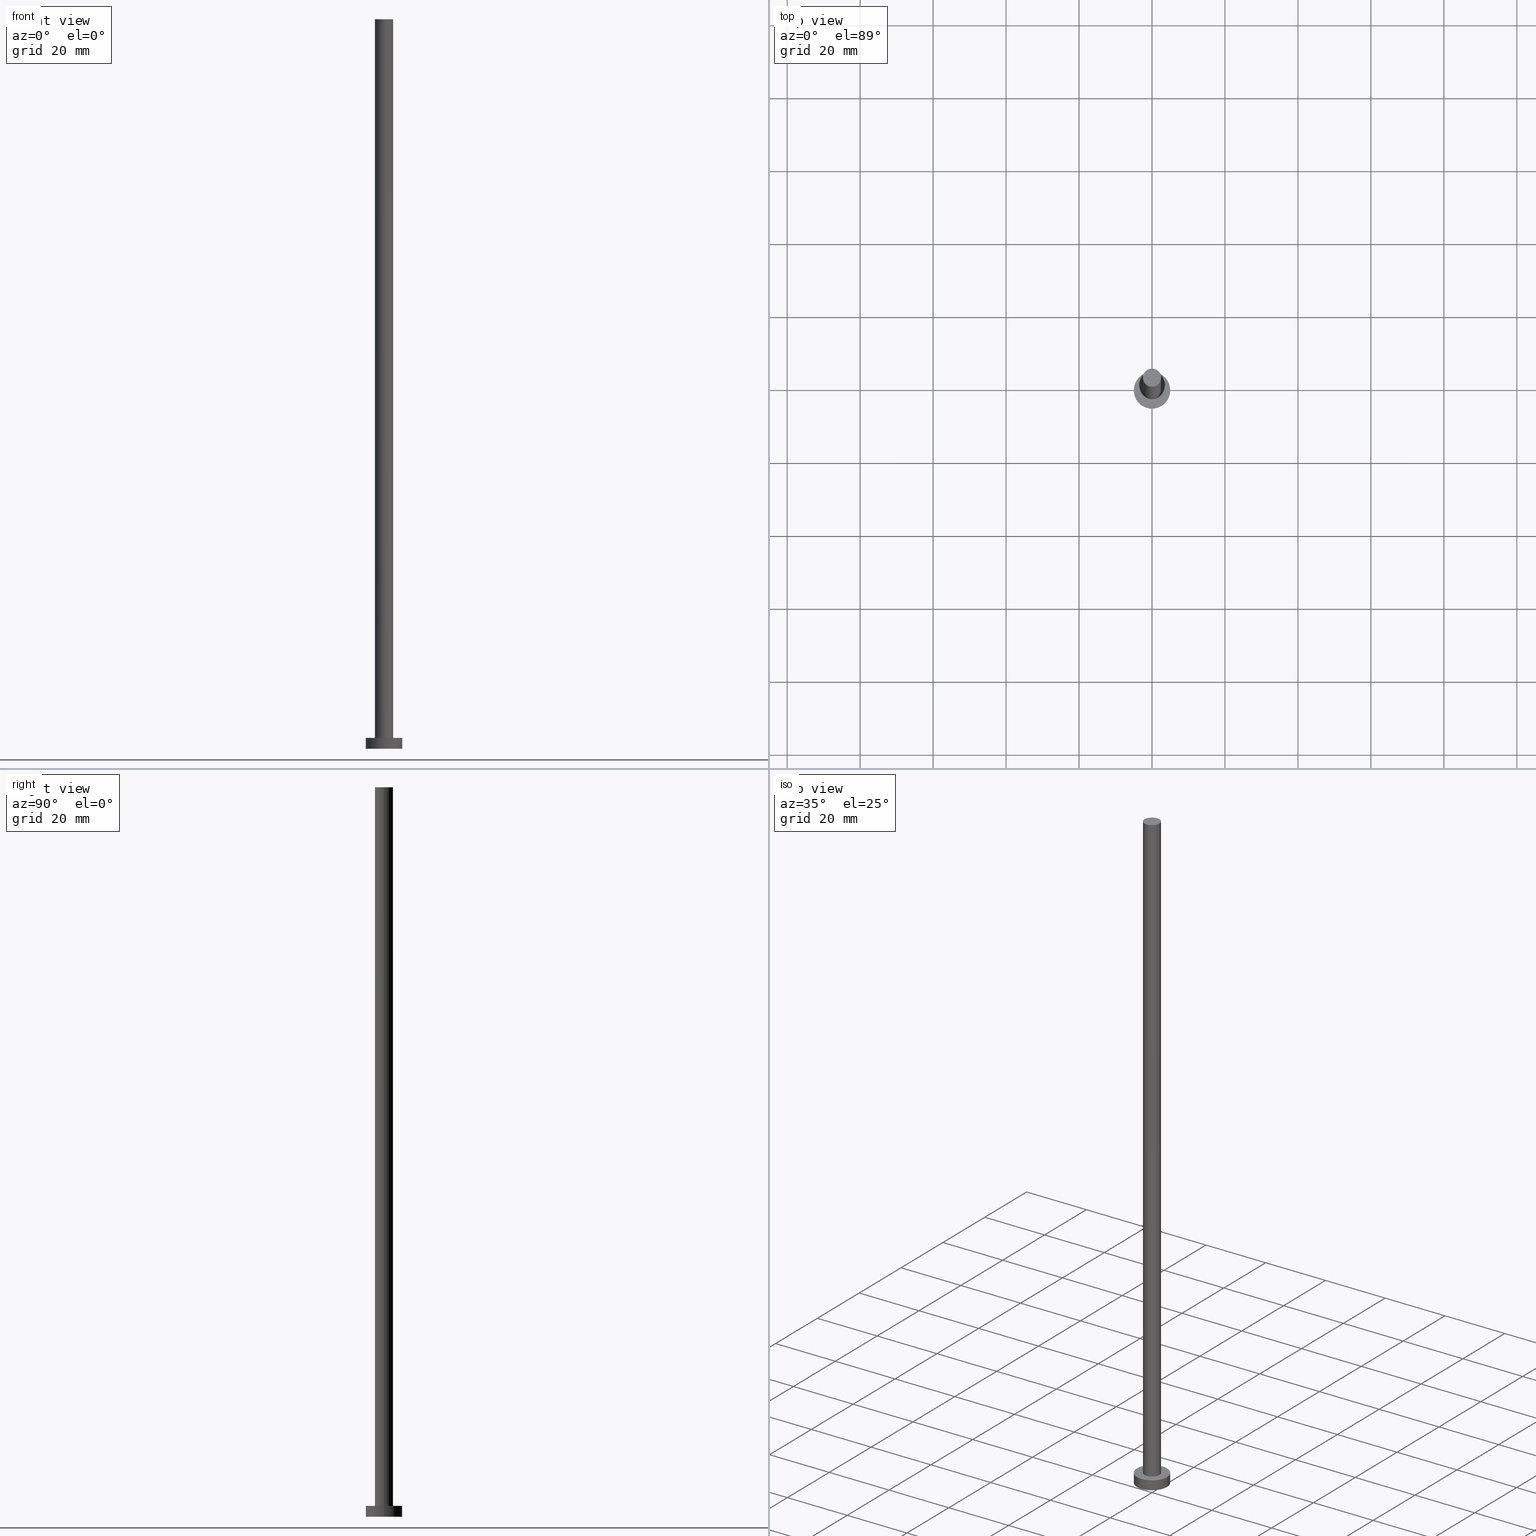
[diagram: canonical four-view strip — front | top / right | iso, engineering-drawing reading convention]
A machine part, canonical four-view strip (front | top / right | iso — engineering-drawing reading convention). The complete STEP part file that produces these views, byte-faithful:
ISO-10303-21;
HEADER;
FILE_DESCRIPTION (( 'STEP AP203' ),
    '1' );
FILE_NAME ('2fd8.STEP',
    '2023-02-12T12:30:58',
    ( '' ),
    ( '' ),
    'SwSTEP 2.0',
    'SolidWorks 2019',
    '' );
FILE_SCHEMA (( 'CONFIG_CONTROL_DESIGN' ));
ENDSEC;

DATA;
#1 = EDGE_LOOP ( 'NONE', ( #192, #132 ) ) ;
#2 = FACE_OUTER_BOUND ( 'NONE', #228, .T. ) ;
#3 = VERTEX_POINT ( 'NONE', #71 ) ;
#4 = PERSON_AND_ORGANIZATION_ROLE ( 'design_owner' ) ;
#5 = AXIS2_PLACEMENT_3D ( 'NONE', #241, #68, #124 ) ;
#6 = DIRECTION ( 'NONE',  ( -0.000000000000000000, -0.000000000000000000, -1.000000000000000000 ) ) ;
#7 = DIRECTION ( 'NONE',  ( 1.000000000000000000, 0.000000000000000000, 0.000000000000000000 ) ) ;
#8 = FACE_OUTER_BOUND ( 'NONE', #1, .T. ) ;
#9 = DIRECTION ( 'NONE',  ( 0.000000000000000000, 0.000000000000000000, 1.000000000000000000 ) ) ;
#10 = AXIS2_PLACEMENT_3D ( 'NONE', #13, #156, #245 ) ;
#11 = EDGE_CURVE ( 'NONE', #87, #165, #249, .T. ) ;
#12 = DIRECTION ( 'NONE',  ( 0.000000000000000000, 0.000000000000000000, 1.000000000000000000 ) ) ;
#13 = CARTESIAN_POINT ( 'NONE',  ( 0.000000000000000000, 0.000000000000000000, 200.0000000000000000 ) ) ;
#14 = DIRECTION ( 'NONE',  ( -1.000000000000000000, 0.000000000000000000, 0.000000000000000000 ) ) ;
#15 = CARTESIAN_POINT ( 'NONE',  ( 0.000000000000000000, 0.000000000000000000, 3.000000000000000000 ) ) ;
#16 = AXIS2_PLACEMENT_3D ( 'NONE', #17, #160, #201 ) ;
#17 = CARTESIAN_POINT ( 'NONE',  ( 0.000000000000000000, 0.000000000000000000, 0.000000000000000000 ) ) ;
#18 = PRODUCT_DEFINITION_SHAPE ( 'NONE', 'NONE',  #164 ) ;
#19 = DATE_AND_TIME ( #179, #91 ) ;
#20 = EDGE_CURVE ( 'NONE', #87, #85, #193, .T. ) ;
#21 = PERSON_AND_ORGANIZATION_ROLE ( 'classification_officer' ) ;
#22 = PERSON_AND_ORGANIZATION ( #26, #197 ) ;
#23 = EDGE_LOOP ( 'NONE', ( #214, #86, #41, #185 ) ) ;
#24 = DIRECTION ( 'NONE',  ( -1.000000000000000000, 0.000000000000000000, 0.000000000000000000 ) ) ;
#25 = EDGE_LOOP ( 'NONE', ( #168, #126, #43, #181 ) ) ;
#26 = PERSON ( 'NEUR�EN�', 'NEUR�EN�', 'NEUR�EN�', ('NEUR�EN�'), ('NEUR�EN�'), ('NEUR�EN�') ) ;
#27 = CARTESIAN_POINT ( 'NONE',  ( -2.500000000000000000, 0.000000000000000000, 200.0000000000000000 ) ) ;
#28 = APPLICATION_CONTEXT ( 'configuration controlled 3d designs of mechanical parts and assemblies' ) ;
#29 = DIRECTION ( 'NONE',  ( -0.000000000000000000, -0.000000000000000000, -1.000000000000000000 ) ) ;
#30 = EDGE_CURVE ( 'NONE', #235, #131, #73, .T. ) ;
#31 = EDGE_CURVE ( 'NONE', #131, #3, #218, .T. ) ;
#32 = CARTESIAN_POINT ( 'NONE',  ( 2.500000000000000000, 3.061616997868383141E-16, 200.0000000000000000 ) ) ;
#33 = CC_DESIGN_APPROVAL ( #121, ( #75 ) ) ;
#34 = CARTESIAN_POINT ( 'NONE',  ( 0.000000000000000000, 0.000000000000000000, 3.000000000000000000 ) ) ;
#35 = DIRECTION ( 'NONE',  ( 1.000000000000000000, 0.000000000000000000, 0.000000000000000000 ) ) ;
#36 = DIRECTION ( 'NONE',  ( 0.000000000000000000, 0.000000000000000000, 1.000000000000000000 ) ) ;
#37 = VECTOR ( 'NONE', #115, 1000.000000000000000 ) ;
#38 = ORIENTED_EDGE ( 'NONE', *, *, #248, .F. ) ;
#39 = EDGE_CURVE ( 'NONE', #3, #131, #223, .T. ) ;
#40 = CC_DESIGN_PERSON_AND_ORGANIZATION_ASSIGNMENT ( #233, #100, ( #164 ) ) ;
#41 = ORIENTED_EDGE ( 'NONE', *, *, #30, .T. ) ;
#42 = MANIFOLD_SOLID_BREP ( 'P�idat vysunut�m3', #206 ) ;
#43 = ORIENTED_EDGE ( 'NONE', *, *, #170, .T. ) ;
#44 = DATE_TIME_ROLE ( 'creation_date' ) ;
#45 = PRODUCT_DEFINITION_FORMATION_WITH_SPECIFIED_SOURCE ( 'LIBOVOLN�', '', #57, .NOT_KNOWN. ) ;
#46 = APPROVAL_STATUS ( 'not_yet_approved' ) ;
#47 = ORIENTED_EDGE ( 'NONE', *, *, #98, .T. ) ;
#48 = PERSON_AND_ORGANIZATION ( #26, #197 ) ;
#49 = CYLINDRICAL_SURFACE ( 'NONE', #10, 2.500000000000000000 ) ;
#50 = CARTESIAN_POINT ( 'NONE',  ( 0.000000000000000000, 0.000000000000000000, 0.000000000000000000 ) ) ;
#51 = DIRECTION ( 'NONE',  ( 0.000000000000000000, 0.000000000000000000, 1.000000000000000000 ) ) ;
#52 = CARTESIAN_POINT ( 'NONE',  ( 0.000000000000000000, 0.000000000000000000, 200.0000000000000000 ) ) ;
#53 = COORDINATED_UNIVERSAL_TIME_OFFSET ( 1, 0, .AHEAD. ) ;
#54 = AXIS2_PLACEMENT_3D ( 'NONE', #34, #29, #14 ) ;
#55 = AXIS2_PLACEMENT_3D ( 'NONE', #190, #108, #134 ) ;
#56 = EDGE_CURVE ( 'NONE', #165, #102, #212, .T. ) ;
#57 = PRODUCT ( '2fd8', '2fd8', '', ( #103 ) ) ;
#58 = ORIENTED_EDGE ( 'NONE', *, *, #31, .F. ) ;
#59 = SHAPE_DEFINITION_REPRESENTATION ( #18, #150 ) ;
#60 = ORIENTED_EDGE ( 'NONE', *, *, #56, .T. ) ;
#61 = SECURITY_CLASSIFICATION_LEVEL ( 'unclassified' ) ;
#62 = CARTESIAN_POINT ( 'NONE',  ( -2.500000000000000000, 0.000000000000000000, 3.000000000000000000 ) ) ;
#63 = ORIENTED_EDGE ( 'NONE', *, *, #248, .T. ) ;
#64 = EDGE_LOOP ( 'NONE', ( #47, #63 ) ) ;
#65 = CARTESIAN_POINT ( 'NONE',  ( 2.500000000000000000, 3.061616997868383141E-16, 200.0000000000000000 ) ) ;
#66 = COORDINATED_UNIVERSAL_TIME_OFFSET ( 1, 0, .AHEAD. ) ;
#67 = FACE_BOUND ( 'NONE', #119, .T. ) ;
#68 = DIRECTION ( 'NONE',  ( 0.000000000000000000, 0.000000000000000000, 1.000000000000000000 ) ) ;
#69 = CIRCLE ( 'NONE', #139, 2.500000000000000000 ) ;
#70 = CC_DESIGN_SECURITY_CLASSIFICATION ( #75, ( #45 ) ) ;
#71 = CARTESIAN_POINT ( 'NONE',  ( 2.500000000000000000, 3.061616997868383141E-16, 3.000000000000000000 ) ) ;
#72 = DIRECTION ( 'NONE',  ( 0.000000000000000000, 0.000000000000000000, 1.000000000000000000 ) ) ;
#73 = LINE ( 'NONE', #229, #77 ) ;
#74 =( LENGTH_UNIT ( ) NAMED_UNIT ( * ) SI_UNIT ( .MILLI., .METRE. ) );
#75 = SECURITY_CLASSIFICATION ( '', '', #61 ) ;
#76 = CARTESIAN_POINT ( 'NONE',  ( 0.000000000000000000, 0.000000000000000000, 3.000000000000000000 ) ) ;
#77 = VECTOR ( 'NONE', #188, 1000.000000000000000 ) ;
#78 = DESIGN_CONTEXT ( 'detailed design', #177, 'design' ) ;
#79 = ADVANCED_FACE ( 'NONE', ( #116 ), #133, .T. ) ;
#80 = AXIS2_PLACEMENT_3D ( 'NONE', #224, #12, #35 ) ;
#81 = PERSON_AND_ORGANIZATION_ROLE ( 'creator' ) ;
#82 = CC_DESIGN_APPROVAL ( #120, ( #164 ) ) ;
#83 = PERSON_AND_ORGANIZATION ( #26, #197 ) ;
#84 = CARTESIAN_POINT ( 'NONE',  ( 0.000000000000000000, 0.000000000000000000, 3.000000000000000000 ) ) ;
#85 = VERTEX_POINT ( 'NONE', #207 ) ;
#86 = ORIENTED_EDGE ( 'NONE', *, *, #98, .F. ) ;
#87 = VERTEX_POINT ( 'NONE', #111 ) ;
#88 = ADVANCED_FACE ( 'NONE', ( #8 ), #171, .F. ) ;
#89 = CC_DESIGN_PERSON_AND_ORGANIZATION_ASSIGNMENT ( #217, #21, ( #75 ) ) ;
#90 = PERSON_AND_ORGANIZATION ( #26, #197 ) ;
#91 = LOCAL_TIME ( 13, 30, 58.00000000000000000, #147 ) ;
#92 = DIRECTION ( 'NONE',  ( 1.000000000000000000, 0.000000000000000000, 0.000000000000000000 ) ) ;
#93 = DIRECTION ( 'NONE',  ( -0.000000000000000000, -0.000000000000000000, -1.000000000000000000 ) ) ;
#94 = FACE_OUTER_BOUND ( 'NONE', #64, .T. ) ;
#95 = UNCERTAINTY_MEASURE_WITH_UNIT (LENGTH_MEASURE( 1.000000000000000082E-05 ), #74, 'distance_accuracy_value', 'NONE');
#96 = DIRECTION ( 'NONE',  ( 1.000000000000000000, 0.000000000000000000, 0.000000000000000000 ) ) ;
#97 = EDGE_CURVE ( 'NONE', #127, #3, #174, .T. ) ;
#98 = EDGE_CURVE ( 'NONE', #235, #127, #69, .T. ) ;
#99 = CC_DESIGN_DATE_AND_TIME_ASSIGNMENT ( #219, #199, ( #75 ) ) ;
#100 = PERSON_AND_ORGANIZATION_ROLE ( 'creator' ) ;
#101 = APPROVAL_DATE_TIME ( #243, #121 ) ;
#102 = VERTEX_POINT ( 'NONE', #237 ) ;
#103 = MECHANICAL_CONTEXT ( 'NONE', #28, 'mechanical' ) ;
#104 = CC_DESIGN_PERSON_AND_ORGANIZATION_ASSIGNMENT ( #251, #81, ( #45 ) ) ;
#105 = EDGE_LOOP ( 'NONE', ( #38, #198, #152, #140 ) ) ;
#106 = CALENDAR_DATE ( 2023, 12, 2 ) ;
#107 = LOCAL_TIME ( 13, 30, 58.00000000000000000, #254 ) ;
#108 = DIRECTION ( 'NONE',  ( -0.000000000000000000, -0.000000000000000000, -1.000000000000000000 ) ) ;
#109 = AXIS2_PLACEMENT_3D ( 'NONE', #180, #216, #183 ) ;
#110 = CALENDAR_DATE ( 2023, 12, 2 ) ;
#111 = CARTESIAN_POINT ( 'NONE',  ( 5.000000000000000000, 6.123233995736766282E-16, 3.000000000000000000 ) ) ;
#112 = CARTESIAN_POINT ( 'NONE',  ( 0.000000000000000000, 0.000000000000000000, 200.0000000000000000 ) ) ;
#113 = AXIS2_PLACEMENT_3D ( 'NONE', #112, #72, #96 ) ;
#114 = DIRECTION ( 'NONE',  ( 1.000000000000000000, 0.000000000000000000, 0.000000000000000000 ) ) ;
#115 = DIRECTION ( 'NONE',  ( -0.000000000000000000, -0.000000000000000000, -1.000000000000000000 ) ) ;
#116 = FACE_OUTER_BOUND ( 'NONE', #25, .T. ) ;
#117 = AXIS2_PLACEMENT_3D ( 'NONE', #227, #51, #92 ) ;
#118 = FACE_OUTER_BOUND ( 'NONE', #232, .T. ) ;
#119 = EDGE_LOOP ( 'NONE', ( #58, #234 ) ) ;
#120 = APPROVAL ( #240, 'NEUR�EN�' ) ;
#121 = APPROVAL ( #46, 'NEUR�EN�' ) ;
#122 = ORIENTED_EDGE ( 'NONE', *, *, #238, .F. ) ;
#123 = CIRCLE ( 'NONE', #109, 5.000000000000000000 ) ;
#124 = DIRECTION ( 'NONE',  ( 1.000000000000000000, 0.000000000000000000, 0.000000000000000000 ) ) ;
#125 =( GEOMETRIC_REPRESENTATION_CONTEXT ( 3 ) GLOBAL_UNCERTAINTY_ASSIGNED_CONTEXT ( ( #95 ) ) GLOBAL_UNIT_ASSIGNED_CONTEXT ( ( #74, #155, #225 ) ) REPRESENTATION_CONTEXT ( 'NONE', 'WORKASPACE' ) );
#126 = ORIENTED_EDGE ( 'NONE', *, *, #20, .T. ) ;
#127 = VERTEX_POINT ( 'NONE', #65 ) ;
#128 = APPLICATION_PROTOCOL_DEFINITION ( 'international standard', 'config_control_design', 1994, #177 ) ;
#129 = CYLINDRICAL_SURFACE ( 'NONE', #166, 2.500000000000000000 ) ;
#130 = APPROVAL_ROLE ( '' ) ;
#131 = VERTEX_POINT ( 'NONE', #62 ) ;
#132 = ORIENTED_EDGE ( 'NONE', *, *, #170, .F. ) ;
#133 = CYLINDRICAL_SURFACE ( 'NONE', #54, 5.000000000000000000 ) ;
#134 = DIRECTION ( 'NONE',  ( -1.000000000000000000, 0.000000000000000000, 0.000000000000000000 ) ) ;
#135 = DIRECTION ( 'NONE',  ( 1.000000000000000000, 0.000000000000000000, -0.000000000000000000 ) ) ;
#136 = EDGE_CURVE ( 'NONE', #102, #85, #123, .T. ) ;
#137 = CIRCLE ( 'NONE', #252, 5.000000000000000000 ) ;
#138 = DIRECTION ( 'NONE',  ( 1.000000000000000000, 0.000000000000000000, 0.000000000000000000 ) ) ;
#139 = AXIS2_PLACEMENT_3D ( 'NONE', #246, #247, #7 ) ;
#140 = ORIENTED_EDGE ( 'NONE', *, *, #30, .F. ) ;
#141 = CC_DESIGN_DATE_AND_TIME_ASSIGNMENT ( #184, #44, ( #164 ) ) ;
#142 = DATE_AND_TIME ( #163, #220 ) ;
#143 = CARTESIAN_POINT ( 'NONE',  ( -5.000000000000000000, 0.000000000000000000, 3.000000000000000000 ) ) ;
#144 = APPROVAL_DATE_TIME ( #19, #203 ) ;
#145 = ADVANCED_FACE ( 'NONE', ( #67, #2 ), #202, .T. ) ;
#146 = AXIS2_PLACEMENT_3D ( 'NONE', #84, #186, #148 ) ;
#147 = COORDINATED_UNIVERSAL_TIME_OFFSET ( 1, 0, .AHEAD. ) ;
#148 = DIRECTION ( 'NONE',  ( 1.000000000000000000, 0.000000000000000000, -0.000000000000000000 ) ) ;
#149 = LOCAL_TIME ( 13, 30, 58.00000000000000000, #53 ) ;
#150 = ADVANCED_BREP_SHAPE_REPRESENTATION ( '2fd8', ( #42, #16 ), #125 ) ;
#151 = COORDINATED_UNIVERSAL_TIME_OFFSET ( 1, 0, .AHEAD. ) ;
#152 = ORIENTED_EDGE ( 'NONE', *, *, #39, .T. ) ;
#153 = AXIS2_PLACEMENT_3D ( 'NONE', #50, #209, #135 ) ;
#154 = CARTESIAN_POINT ( 'NONE',  ( -5.000000000000000000, 0.000000000000000000, 3.000000000000000000 ) ) ;
#155 =( NAMED_UNIT ( * ) PLANE_ANGLE_UNIT ( ) SI_UNIT ( $, .RADIAN. ) );
#156 = DIRECTION ( 'NONE',  ( -0.000000000000000000, -0.000000000000000000, -1.000000000000000000 ) ) ;
#157 = AXIS2_PLACEMENT_3D ( 'NONE', #52, #36, #189 ) ;
#158 = DIRECTION ( 'NONE',  ( 0.000000000000000000, 0.000000000000000000, 1.000000000000000000 ) ) ;
#159 = APPROVAL_PERSON_ORGANIZATION ( #48, #120, #167 ) ;
#160 = DIRECTION ( 'NONE',  ( 0.000000000000000000, 0.000000000000000000, 1.000000000000000000 ) ) ;
#161 = PRODUCT_RELATED_PRODUCT_CATEGORY ( 'detail', '', ( #57 ) ) ;
#162 = APPROVAL_ROLE ( '' ) ;
#163 = CALENDAR_DATE ( 2023, 12, 2 ) ;
#164 = PRODUCT_DEFINITION ( 'NEZN�M�', '', #45, #78 ) ;
#165 = VERTEX_POINT ( 'NONE', #143 ) ;
#166 = AXIS2_PLACEMENT_3D ( 'NONE', #200, #6, #24 ) ;
#167 = APPROVAL_ROLE ( '' ) ;
#168 = ORIENTED_EDGE ( 'NONE', *, *, #11, .F. ) ;
#169 = DIRECTION ( 'NONE',  ( -0.000000000000000000, -0.000000000000000000, -1.000000000000000000 ) ) ;
#170 = EDGE_CURVE ( 'NONE', #85, #102, #191, .T. ) ;
#171 = PLANE ( 'NONE',  #153 ) ;
#172 = CYLINDRICAL_SURFACE ( 'NONE', #55, 5.000000000000000000 ) ;
#173 = FACE_OUTER_BOUND ( 'NONE', #105, .T. ) ;
#174 = LINE ( 'NONE', #32, #37 ) ;
#175 = ORIENTED_EDGE ( 'NONE', *, *, #11, .T. ) ;
#176 = APPLICATION_PROTOCOL_DEFINITION ( 'international standard', 'config_control_design', 1994, #28 ) ;
#177 = APPLICATION_CONTEXT ( 'configuration controlled 3d designs of mechanical parts and assemblies' ) ;
#178 = ADVANCED_FACE ( 'NONE', ( #221 ), #129, .T. ) ;
#179 = CALENDAR_DATE ( 2023, 12, 2 ) ;
#180 = CARTESIAN_POINT ( 'NONE',  ( 0.000000000000000000, 0.000000000000000000, 0.000000000000000000 ) ) ;
#181 = ORIENTED_EDGE ( 'NONE', *, *, #56, .F. ) ;
#182 = APPROVAL_STATUS ( 'not_yet_approved' ) ;
#183 = DIRECTION ( 'NONE',  ( 1.000000000000000000, 0.000000000000000000, 0.000000000000000000 ) ) ;
#184 = DATE_AND_TIME ( #196, #187 ) ;
#185 = ORIENTED_EDGE ( 'NONE', *, *, #31, .T. ) ;
#186 = DIRECTION ( 'NONE',  ( 0.000000000000000000, 0.000000000000000000, 1.000000000000000000 ) ) ;
#187 = LOCAL_TIME ( 13, 30, 58.00000000000000000, #66 ) ;
#188 = DIRECTION ( 'NONE',  ( -0.000000000000000000, -0.000000000000000000, -1.000000000000000000 ) ) ;
#189 = DIRECTION ( 'NONE',  ( 1.000000000000000000, 0.000000000000000000, -0.000000000000000000 ) ) ;
#190 = CARTESIAN_POINT ( 'NONE',  ( 0.000000000000000000, 0.000000000000000000, 3.000000000000000000 ) ) ;
#191 = CIRCLE ( 'NONE', #5, 5.000000000000000000 ) ;
#192 = ORIENTED_EDGE ( 'NONE', *, *, #136, .F. ) ;
#193 = LINE ( 'NONE', #244, #205 ) ;
#194 = ADVANCED_FACE ( 'NONE', ( #94 ), #210, .T. ) ;
#195 = VECTOR ( 'NONE', #169, 1000.000000000000000 ) ;
#196 = CALENDAR_DATE ( 2023, 12, 2 ) ;
#197 = ORGANIZATION ( 'NEUR�EN�', 'NEUR�EN�', '' ) ;
#198 = ORIENTED_EDGE ( 'NONE', *, *, #97, .T. ) ;
#199 = DATE_TIME_ROLE ( 'classification_date' ) ;
#200 = CARTESIAN_POINT ( 'NONE',  ( 0.000000000000000000, 0.000000000000000000, 200.0000000000000000 ) ) ;
#201 = DIRECTION ( 'NONE',  ( 1.000000000000000000, 0.000000000000000000, 0.000000000000000000 ) ) ;
#202 = PLANE ( 'NONE',  #146 ) ;
#203 = APPROVAL ( #182, 'NEUR�EN�' ) ;
#204 = CC_DESIGN_PERSON_AND_ORGANIZATION_ASSIGNMENT ( #215, #4, ( #57 ) ) ;
#205 = VECTOR ( 'NONE', #93, 1000.000000000000000 ) ;
#206 = CLOSED_SHELL ( 'NONE', ( #230, #79, #213, #145, #88, #178, #194 ) ) ;
#207 = CARTESIAN_POINT ( 'NONE',  ( 5.000000000000000000, 6.123233995736766282E-16, 0.000000000000000000 ) ) ;
#208 = APPROVAL_PERSON_ORGANIZATION ( #22, #121, #130 ) ;
#209 = DIRECTION ( 'NONE',  ( 0.000000000000000000, 0.000000000000000000, 1.000000000000000000 ) ) ;
#210 = PLANE ( 'NONE',  #157 ) ;
#211 = ORIENTED_EDGE ( 'NONE', *, *, #20, .F. ) ;
#212 = LINE ( 'NONE', #154, #195 ) ;
#213 = ADVANCED_FACE ( 'NONE', ( #118 ), #172, .T. ) ;
#214 = ORIENTED_EDGE ( 'NONE', *, *, #97, .F. ) ;
#215 = PERSON_AND_ORGANIZATION ( #26, #197 ) ;
#216 = DIRECTION ( 'NONE',  ( 0.000000000000000000, 0.000000000000000000, 1.000000000000000000 ) ) ;
#217 = PERSON_AND_ORGANIZATION ( #26, #197 ) ;
#218 = CIRCLE ( 'NONE', #80, 2.500000000000000000 ) ;
#219 = DATE_AND_TIME ( #106, #107 ) ;
#220 = LOCAL_TIME ( 13, 30, 58.00000000000000000, #151 ) ;
#221 = FACE_OUTER_BOUND ( 'NONE', #23, .T. ) ;
#222 = PERSON_AND_ORGANIZATION_ROLE ( 'design_supplier' ) ;
#223 = CIRCLE ( 'NONE', #117, 2.500000000000000000 ) ;
#224 = CARTESIAN_POINT ( 'NONE',  ( 0.000000000000000000, 0.000000000000000000, 3.000000000000000000 ) ) ;
#225 =( NAMED_UNIT ( * ) SI_UNIT ( $, .STERADIAN. ) SOLID_ANGLE_UNIT ( ) );
#226 = CC_DESIGN_APPROVAL ( #203, ( #45 ) ) ;
#227 = CARTESIAN_POINT ( 'NONE',  ( 0.000000000000000000, 0.000000000000000000, 3.000000000000000000 ) ) ;
#228 = EDGE_LOOP ( 'NONE', ( #239, #175 ) ) ;
#229 = CARTESIAN_POINT ( 'NONE',  ( -2.500000000000000000, 0.000000000000000000, 200.0000000000000000 ) ) ;
#230 = ADVANCED_FACE ( 'NONE', ( #173 ), #49, .T. ) ;
#231 = CIRCLE ( 'NONE', #113, 2.500000000000000000 ) ;
#232 = EDGE_LOOP ( 'NONE', ( #211, #122, #60, #236 ) ) ;
#233 = PERSON_AND_ORGANIZATION ( #26, #197 ) ;
#234 = ORIENTED_EDGE ( 'NONE', *, *, #39, .F. ) ;
#235 = VERTEX_POINT ( 'NONE', #27 ) ;
#236 = ORIENTED_EDGE ( 'NONE', *, *, #136, .T. ) ;
#237 = CARTESIAN_POINT ( 'NONE',  ( -5.000000000000000000, 0.000000000000000000, 0.000000000000000000 ) ) ;
#238 = EDGE_CURVE ( 'NONE', #165, #87, #137, .T. ) ;
#239 = ORIENTED_EDGE ( 'NONE', *, *, #238, .T. ) ;
#240 = APPROVAL_STATUS ( 'not_yet_approved' ) ;
#241 = CARTESIAN_POINT ( 'NONE',  ( 0.000000000000000000, 0.000000000000000000, 0.000000000000000000 ) ) ;
#242 = AXIS2_PLACEMENT_3D ( 'NONE', #76, #158, #114 ) ;
#243 = DATE_AND_TIME ( #110, #149 ) ;
#244 = CARTESIAN_POINT ( 'NONE',  ( 5.000000000000000000, 6.123233995736766282E-16, 3.000000000000000000 ) ) ;
#245 = DIRECTION ( 'NONE',  ( -1.000000000000000000, 0.000000000000000000, 0.000000000000000000 ) ) ;
#246 = CARTESIAN_POINT ( 'NONE',  ( 0.000000000000000000, 0.000000000000000000, 200.0000000000000000 ) ) ;
#247 = DIRECTION ( 'NONE',  ( 0.000000000000000000, 0.000000000000000000, 1.000000000000000000 ) ) ;
#248 = EDGE_CURVE ( 'NONE', #127, #235, #231, .T. ) ;
#249 = CIRCLE ( 'NONE', #242, 5.000000000000000000 ) ;
#250 = APPROVAL_PERSON_ORGANIZATION ( #83, #203, #162 ) ;
#251 = PERSON_AND_ORGANIZATION ( #26, #197 ) ;
#252 = AXIS2_PLACEMENT_3D ( 'NONE', #15, #9, #138 ) ;
#253 = APPROVAL_DATE_TIME ( #142, #120 ) ;
#254 = COORDINATED_UNIVERSAL_TIME_OFFSET ( 1, 0, .AHEAD. ) ;
#255 = CC_DESIGN_PERSON_AND_ORGANIZATION_ASSIGNMENT ( #90, #222, ( #45 ) ) ;
ENDSEC;
END-ISO-10303-21;
